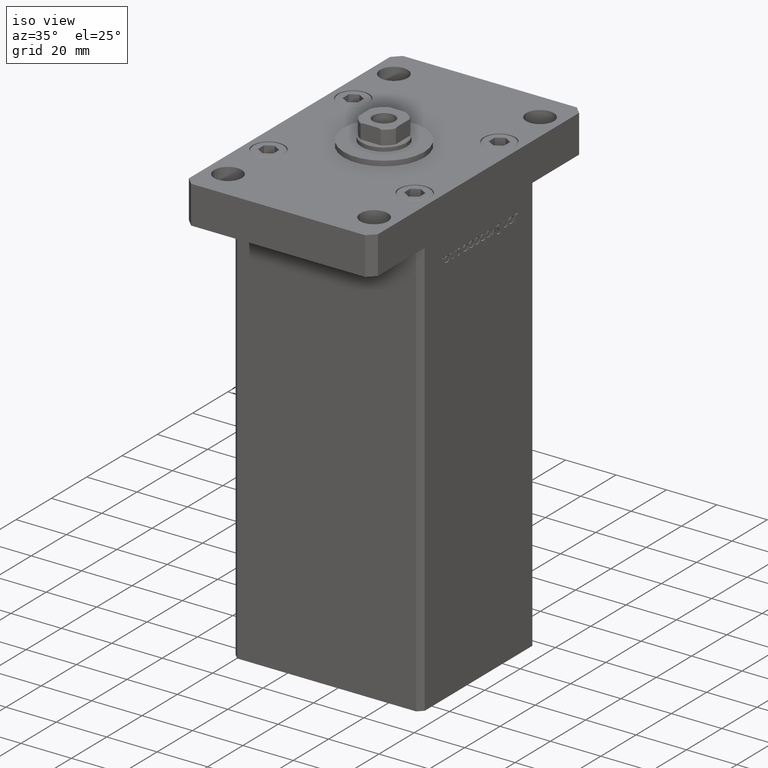
[diagram: clean part render]
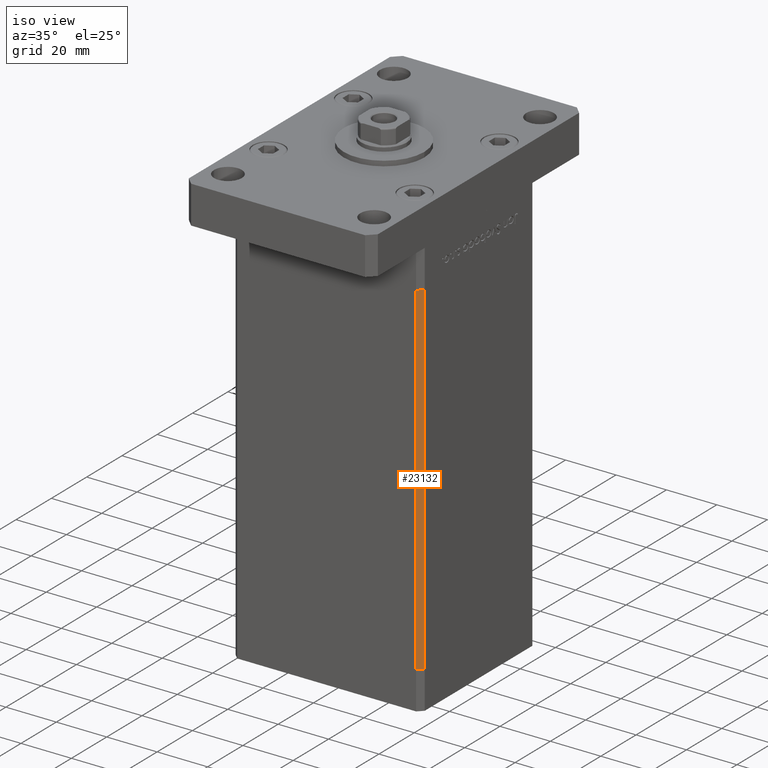
[diagram: same view with one face highlighted and labeled with its STEP entity id]
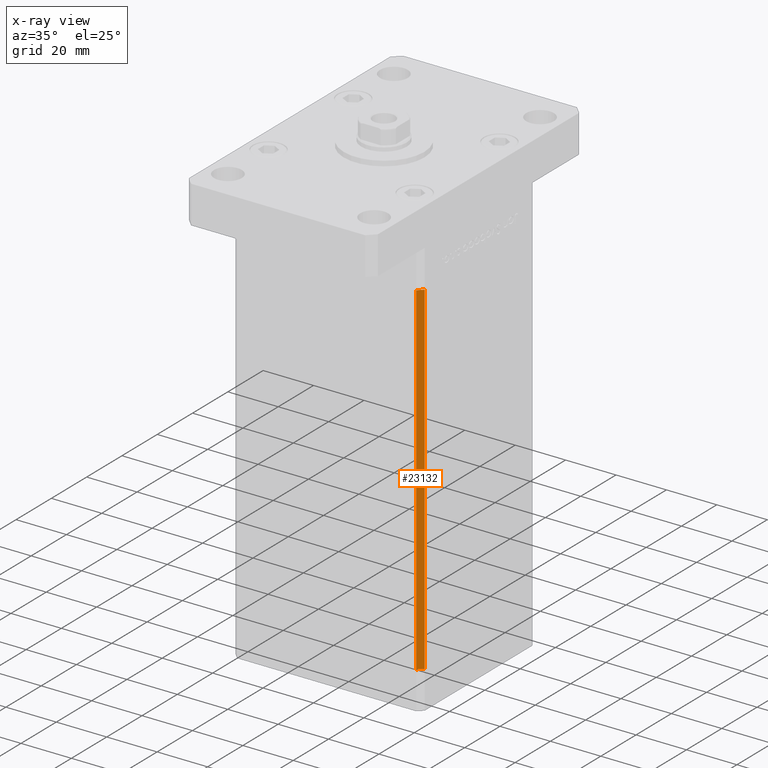
[diagram: x-ray of the same camera — body ghosted, the highlighted face saturated]
A machine part, iso view. The second image highlights one B-rep face of the part: STEP entity #23132.
The next image is the same camera in x-ray: the body ghosted, the highlighted face saturated — about 0% of this face is hidden behind the body in this view.
In plain terms, the highlighted planar face has unit normal (0.7071, -0.7071, 0).
Its self-contained STEP definition (entity closure, byte-faithful):
#2463 = FACE_OUTER_BOUND ( 'NONE', #9816, .T. ) ;
#4948 = VERTEX_POINT ( 'NONE', #11210 ) ;
#8794 = DIRECTION ( 'NONE',  ( -0.000000000000000000, -0.000000000000000000, -1.000000000000000000 ) ) ;
#8967 = VECTOR ( 'NONE', #12545, 1000.000000000000114 ) ;
#9816 = EDGE_LOOP ( 'NONE', ( #41151, #52007, #26427, #38881 ) ) ;
#10607 = VERTEX_POINT ( 'NONE', #21442 ) ;
#11210 = CARTESIAN_POINT ( 'NONE',  ( 35.49999999999999289, -32.50000000000000000, 136.0000000000000000 ) ) ;
#12459 = LINE ( 'NONE', #33345, #37069 ) ;
#12545 = DIRECTION ( 'NONE',  ( -0.7071067811865474617, -0.7071067811865474617, 0.000000000000000000 ) ) ;
#14615 = VERTEX_POINT ( 'NONE', #48085 ) ;
#15785 = VECTOR ( 'NONE', #8794, 1000.000000000000000 ) ;
#18992 = PLANE ( 'NONE',  #43547 ) ;
#20216 = CARTESIAN_POINT ( 'NONE',  ( 37.49999999999999289, -30.50000000000000000, 136.0000000000000000 ) ) ;
#21442 = CARTESIAN_POINT ( 'NONE',  ( 37.49999999999999289, -30.50000000000000000, 0.000000000000000000 ) ) ;
#21485 = EDGE_CURVE ( 'NONE', #36485, #10607, #33463, .T. ) ;
#23132 = ADVANCED_FACE ( 'NONE', ( #2463 ), #18992, .T. ) ;
#23627 = VECTOR ( 'NONE', #38261, 1000.000000000000000 ) ;
#23734 = EDGE_CURVE ( 'NONE', #36485, #4948, #35880, .T. ) ;
#23984 = LINE ( 'NONE', #25274, #23627 ) ;
#25274 = CARTESIAN_POINT ( 'NONE',  ( 35.49999999999999289, -32.50000000000000000, 136.0000000000000000 ) ) ;
#26427 = ORIENTED_EDGE ( 'NONE', *, *, #23734, .T. ) ;
#30433 = DIRECTION ( 'NONE',  ( 0.7071067811865474617, 0.7071067811865474617, 0.000000000000000000 ) ) ;
#30956 = CARTESIAN_POINT ( 'NONE',  ( 37.49999999999999289, -30.50000000000000000, 136.0000000000000000 ) ) ;
#33345 = CARTESIAN_POINT ( 'NONE',  ( 37.49999999999999289, -30.50000000000000000, 0.000000000000000000 ) ) ;
#33463 = LINE ( 'NONE', #50784, #15785 ) ;
#34675 = EDGE_CURVE ( 'NONE', #10607, #14615, #12459, .T. ) ;
#34755 = DIRECTION ( 'NONE',  ( 0.7071067811865475727, -0.7071067811865475727, 0.000000000000000000 ) ) ;
#35880 = LINE ( 'NONE', #52402, #8967 ) ;
#36485 = VERTEX_POINT ( 'NONE', #20216 ) ;
#37069 = VECTOR ( 'NONE', #37678, 1000.000000000000114 ) ;
#37678 = DIRECTION ( 'NONE',  ( -0.7071067811865474617, -0.7071067811865474617, 0.000000000000000000 ) ) ;
#38261 = DIRECTION ( 'NONE',  ( -0.000000000000000000, -0.000000000000000000, -1.000000000000000000 ) ) ;
#38881 = ORIENTED_EDGE ( 'NONE', *, *, #52616, .T. ) ;
#41151 = ORIENTED_EDGE ( 'NONE', *, *, #34675, .F. ) ;
#43547 = AXIS2_PLACEMENT_3D ( 'NONE', #30956, #34755, #30433 ) ;
#48085 = CARTESIAN_POINT ( 'NONE',  ( 35.49999999999999289, -32.50000000000000000, 0.000000000000000000 ) ) ;
#50784 = CARTESIAN_POINT ( 'NONE',  ( 37.49999999999999289, -30.50000000000000000, 136.0000000000000000 ) ) ;
#52007 = ORIENTED_EDGE ( 'NONE', *, *, #21485, .F. ) ;
#52402 = CARTESIAN_POINT ( 'NONE',  ( 37.49999999999999289, -30.50000000000000000, 136.0000000000000000 ) ) ;
#52616 = EDGE_CURVE ( 'NONE', #4948, #14615, #23984, .T. ) ;